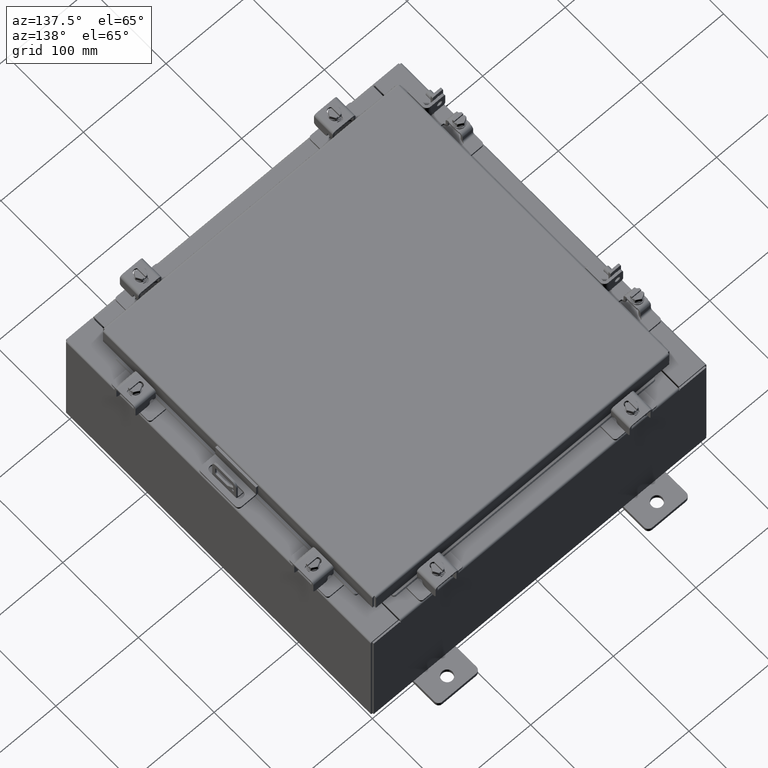
[diagram: clean part render]
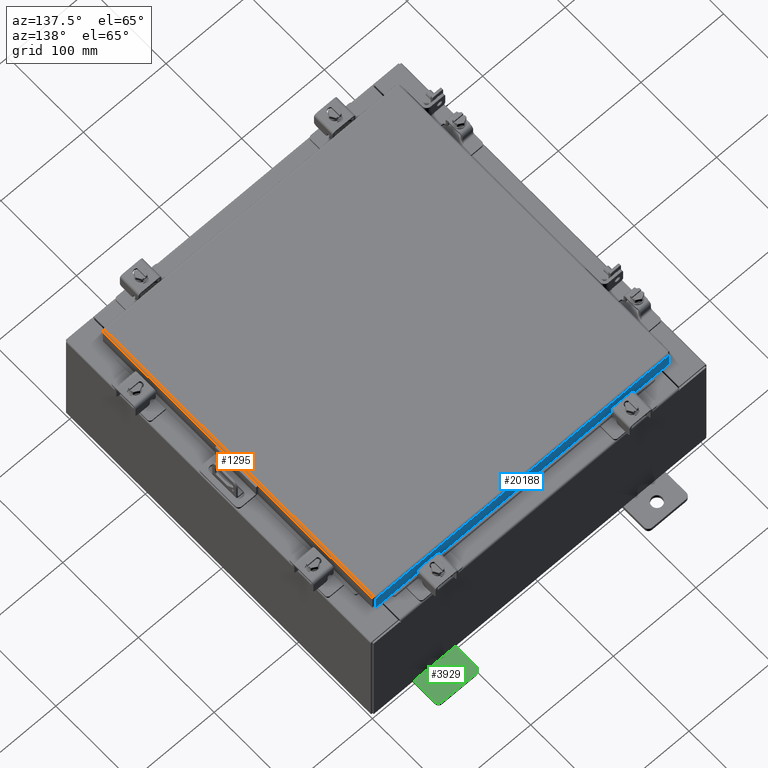
[diagram: same view with three faces highlighted in distinct colors, each labeled with its STEP entity id]
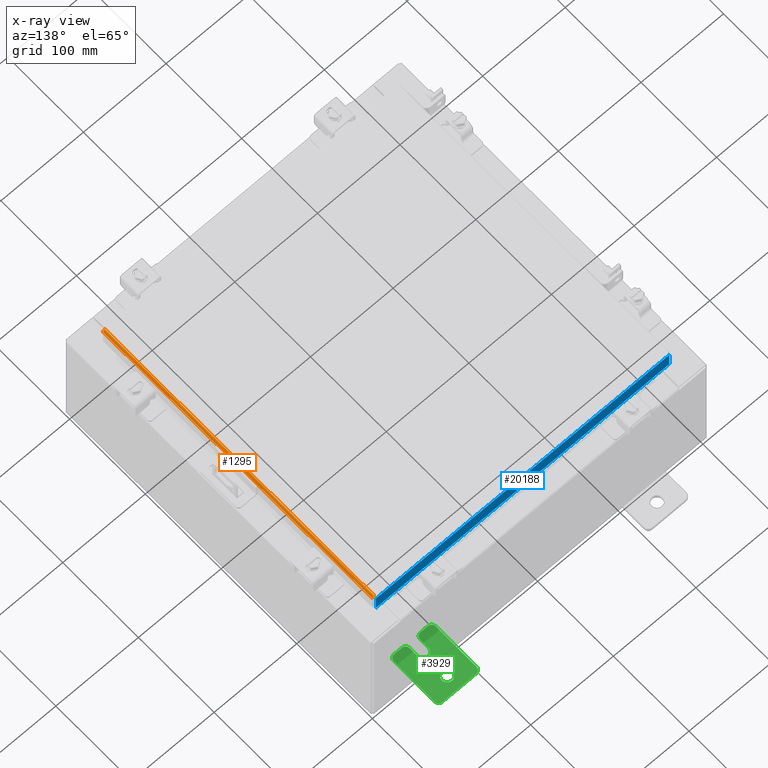
[diagram: x-ray of the same camera — body ghosted, the three highlighted faces saturated]
A machine part, auxiliary view with three faces highlighted in distinct colors.
The next image is the same camera in x-ray (body ghosted, the three faces saturated) — at least one of them is partly hidden behind the body in this view.
Their STEP definitions:

[orange] entity #1295 — the highlighted cylindrical surface (edge-blend (fillet) strip) has radius 2.2276 mm, axis along (-0, -1, -0).
#385 = B_SPLINE_CURVE_WITH_KNOTS ( 'NONE', 3,
 ( #2006, #16840, #18450, #8794, #20054, #10406, #729, #12027, #2365, #13641 ),
 .UNSPECIFIED., .F., .F.,
 ( 4, 2, 2, 2, 4 ),
 ( 0.0000000000000000000, 0.2500000000000000000, 0.5000000000000000000, 0.7500000000000000000, 1.000000000000000000 ),
 .UNSPECIFIED. ) ;
#663 = CARTESIAN_POINT ( 'NONE',  ( 7.044195747341800200, 7.005824110156779300, -0.01756921792167976500 ) ) ;
#729 = CARTESIAN_POINT ( 'NONE',  ( 7.034467384578528400, -7.005919288125422600, -0.01106893374133176100 ) ) ;
#810 = DIRECTION ( 'NONE',  ( 1.000000000000000000, 0.0000000000000000000, 2.725618009642215600E-015 ) ) ;
#892 = CARTESIAN_POINT ( 'NONE',  ( 6.990299999999998600, -7.006300000000000400, -0.08770000000000030500 ) ) ;
#1034 = EDGE_CURVE ( 'NONE', #11741, #14161, #6646, .T. ) ;
#1159 = AXIS2_PLACEMENT_3D ( 'NONE', #892, #12098, #810 ) ;
#1295 = ADVANCED_FACE ( 'NONE', ( #11260 ), #10751, .T. ) ;
#1698 = B_SPLINE_CURVE_WITH_KNOTS ( 'NONE', 3,
 ( #18364, #7122, #19971, #10319, #663, #11962, #2273, #13559, #3900, #15231 ),
 .UNSPECIFIED., .F., .F.,
 ( 4, 2, 2, 2, 4 ),
 ( 0.0000000000000000000, 0.2500000000000000000, 0.5000000000000000000, 0.7500000000000000000, 1.000000000000000000 ),
 .UNSPECIFIED. ) ;
#2006 = CARTESIAN_POINT ( 'NONE',  ( 7.077999999999999400, -7.005157864376269700, -0.08770000000000007000 ) ) ;
#2273 = CARTESIAN_POINT ( 'NONE',  ( 7.066931066258666400, 7.005538576250847500, -0.04353261542147223600 ) ) ;
#2365 = CARTESIAN_POINT ( 'NONE',  ( 7.001779903154991700, -7.006204822031357100, -2.038214714022946300E-016 ) ) ;
#3370 = VERTEX_POINT ( 'NONE', #3934 ) ;
#3796 = DIRECTION ( 'NONE',  ( 0.0000000000000000000, 1.000000000000000000, 0.0000000000000000000 ) ) ;
#3804 = VERTEX_POINT ( 'NONE', #5198 ) ;
#3900 = CARTESIAN_POINT ( 'NONE',  ( 7.077999999999999400, 7.005253042344914900, -0.07622009684500738500 ) ) ;
#3934 = CARTESIAN_POINT ( 'NONE',  ( 6.990299999999998600, -7.006300000000000400, -2.048885995248197400E-016 ) ) ;
#3998 = LINE ( 'NONE', #18285, #16405 ) ;
#5198 = CARTESIAN_POINT ( 'NONE',  ( 6.990299999999998600, 7.006300000000000400, -2.048885995248197400E-016 ) ) ;
#6646 = LINE ( 'NONE', #8671, #18461 ) ;
#6773 = ORIENTED_EDGE ( 'NONE', *, *, #17958, .F. ) ;
#7122 = CARTESIAN_POINT ( 'NONE',  ( 7.001779903154992500, 7.006204822031357100, -2.037881236484656600E-016 ) ) ;
#8190 = CARTESIAN_POINT ( 'NONE',  ( 7.077999999999999400, -7.005157864376269700, -0.08770000000000007000 ) ) ;
#8671 = CARTESIAN_POINT ( 'NONE',  ( 7.077999999999999400, 0.0000000000000000000, -0.08770000000000007000 ) ) ;
#8794 = CARTESIAN_POINT ( 'NONE',  ( 7.066931066258665500, -7.005538576250844900, -0.04353261542147222900 ) ) ;
#9025 = DIRECTION ( 'NONE',  ( 0.0000000000000000000, -1.000000000000000000, 0.0000000000000000000 ) ) ;
#9313 = EDGE_CURVE ( 'NONE', #14161, #3370, #385, .T. ) ;
#9446 = ORIENTED_EDGE ( 'NONE', *, *, #9313, .F. ) ;
#10315 = EDGE_LOOP ( 'NONE', ( #6773, #9446, #16059, #19665 ) ) ;
#10319 = CARTESIAN_POINT ( 'NONE',  ( 7.034467384578526600, 7.005919288125420900, -0.01106893374133176100 ) ) ;
#10406 = CARTESIAN_POINT ( 'NONE',  ( 7.044195747341800200, -7.005824110156780200, -0.01756921792167976500 ) ) ;
#10751 = CYLINDRICAL_SURFACE ( 'NONE', #1159, 0.08770000000000026400 ) ;
#11260 = FACE_OUTER_BOUND ( 'NONE', #10315, .T. ) ;
#11741 = VERTEX_POINT ( 'NONE', #20500 ) ;
#11962 = CARTESIAN_POINT ( 'NONE',  ( 7.060430782078318800, 7.005633754219490000, -0.03380425265820009900 ) ) ;
#12027 = CARTESIAN_POINT ( 'NONE',  ( 7.013255289458310700, -7.006109644062711100, -0.002282596256188923000 ) ) ;
#12098 = DIRECTION ( 'NONE',  ( -0.0000000000000000000, -1.000000000000000000, -0.0000000000000000000 ) ) ;
#13559 = CARTESIAN_POINT ( 'NONE',  ( 7.075717403743811800, 7.005348220313559100, -0.06474471054169121700 ) ) ;
#13641 = CARTESIAN_POINT ( 'NONE',  ( 6.990299999999998600, -7.006300000000000400, -2.048885995248197400E-016 ) ) ;
#14161 = VERTEX_POINT ( 'NONE', #8190 ) ;
#15231 = CARTESIAN_POINT ( 'NONE',  ( 7.077999999999999400, 7.005157864376269700, -0.08770000000000007000 ) ) ;
#16059 = ORIENTED_EDGE ( 'NONE', *, *, #1034, .F. ) ;
#16405 = VECTOR ( 'NONE', #3796, 39.37007874015748100 ) ;
#16840 = CARTESIAN_POINT ( 'NONE',  ( 7.078000000000000300, -7.005253042344914900, -0.07622009684500735700 ) ) ;
#17368 = EDGE_CURVE ( 'NONE', #3804, #11741, #1698, .T. ) ;
#17958 = EDGE_CURVE ( 'NONE', #3370, #3804, #3998, .T. ) ;
#18285 = CARTESIAN_POINT ( 'NONE',  ( 6.990299999999998600, -7.006300000000000400, -2.048885995248197400E-016 ) ) ;
#18364 = CARTESIAN_POINT ( 'NONE',  ( 6.990299999999998600, 7.006300000000000400, -2.048885995248197400E-016 ) ) ;
#18450 = CARTESIAN_POINT ( 'NONE',  ( 7.075717403743810000, -7.005348220313559100, -0.06474471054169121700 ) ) ;
#18461 = VECTOR ( 'NONE', #9025, 39.37007874015748100 ) ;
#19665 = ORIENTED_EDGE ( 'NONE', *, *, #17368, .F. ) ;
#19971 = CARTESIAN_POINT ( 'NONE',  ( 7.013255289458309800, 7.006109644062711100, -0.002282596256188923400 ) ) ;
#20054 = CARTESIAN_POINT ( 'NONE',  ( 7.060430782078321400, -7.005633754219491700, -0.03380425265820009200 ) ) ;
#20500 = CARTESIAN_POINT ( 'NONE',  ( 7.077999999999999400, 7.005157864376269700, -0.08770000000000007000 ) ) ;

[blue] entity #20188 — the highlighted planar face has unit normal (0, -1, -0).
#485 = VERTEX_POINT ( 'NONE', #14532 ) ;
#845 = CARTESIAN_POINT ( 'NONE',  ( -6.239157864376272400, 7.094000000000000300, -0.8500000000000024200 ) ) ;
#878 = VECTOR ( 'NONE', #19590, 39.37007874015748100 ) ;
#1950 = VERTEX_POINT ( 'NONE', #5700 ) ;
#2039 = EDGE_CURVE ( 'NONE', #16246, #13955, #11984, .T. ) ;
#2225 = EDGE_CURVE ( 'NONE', #16246, #1950, #8976, .T. ) ;
#2245 = LINE ( 'NONE', #7115, #2764 ) ;
#2570 = CARTESIAN_POINT ( 'NONE',  ( 6.989157864376268800, 7.094000000000002100, -0.8499999999999996400 ) ) ;
#2707 = ORIENTED_EDGE ( 'NONE', *, *, #18671, .F. ) ;
#2719 = EDGE_CURVE ( 'NONE', #19435, #485, #10969, .T. ) ;
#2764 = VECTOR ( 'NONE', #11952, 39.37007874015748100 ) ;
#2987 = ORIENTED_EDGE ( 'NONE', *, *, #2719, .F. ) ;
#5700 = CARTESIAN_POINT ( 'NONE',  ( -6.989157864376270600, 7.094000000000000300, -0.08770000000000007000 ) ) ;
#6087 = CARTESIAN_POINT ( 'NONE',  ( 6.989157864376268800, 7.094000000000000300, -0.08770000000000007000 ) ) ;
#6332 = AXIS2_PLACEMENT_3D ( 'NONE', #10263, #19987, #10333 ) ;
#7115 = CARTESIAN_POINT ( 'NONE',  ( -6.989157864376270600, 7.094000000000000300, -0.07469999999999978000 ) ) ;
#7565 = VECTOR ( 'NONE', #14339, 39.37007874015748100 ) ;
#7866 = CARTESIAN_POINT ( 'NONE',  ( -7.078000000000003800, 7.094000000000002100, -0.8500000000000014200 ) ) ;
#8557 = LINE ( 'NONE', #16041, #7565 ) ;
#8976 = LINE ( 'NONE', #14821, #878 ) ;
#9024 = EDGE_CURVE ( 'NONE', #13390, #19435, #15326, .T. ) ;
#9958 = ORIENTED_EDGE ( 'NONE', *, *, #2225, .F. ) ;
#10179 = ORIENTED_EDGE ( 'NONE', *, *, #9024, .F. ) ;
#10263 = CARTESIAN_POINT ( 'NONE',  ( -2.508402649932931100E-030, 7.094000000000000300, 2.025795506403866100E-014 ) ) ;
#10333 = DIRECTION ( 'NONE',  ( 0.0000000000000000000, 2.818880942772353800E-015, -1.000000000000000000 ) ) ;
#10969 = LINE ( 'NONE', #11115, #15273 ) ;
#11115 = CARTESIAN_POINT ( 'NONE',  ( -6.239157864376272400, 7.094000000000000300, -0.8500000000000024200 ) ) ;
#11709 = ORIENTED_EDGE ( 'NONE', *, *, #19727, .F. ) ;
#11952 = DIRECTION ( 'NONE',  ( -0.0000000000000000000, 2.818880942772353800E-015, -1.000000000000000000 ) ) ;
#11984 = LINE ( 'NONE', #18177, #15796 ) ;
#13390 = VERTEX_POINT ( 'NONE', #16030 ) ;
#13607 = EDGE_LOOP ( 'NONE', ( #9958, #14426, #11709, #2987, #10179, #2707 ) ) ;
#13955 = VERTEX_POINT ( 'NONE', #2570 ) ;
#14339 = DIRECTION ( 'NONE',  ( 1.000000000000000000, 4.379057701015054300E-047, 1.254380613084043100E-016 ) ) ;
#14426 = ORIENTED_EDGE ( 'NONE', *, *, #2039, .T. ) ;
#14532 = CARTESIAN_POINT ( 'NONE',  ( 6.239157864376261700, 7.094000000000000300, -0.8500000000000024200 ) ) ;
#14821 = CARTESIAN_POINT ( 'NONE',  ( -7.078000000000002100, 7.094000000000000300, -0.08770000000000007000 ) ) ;
#15273 = VECTOR ( 'NONE', #20748, 39.37007874015748100 ) ;
#15326 = LINE ( 'NONE', #7866, #15829 ) ;
#15796 = VECTOR ( 'NONE', #18312, 39.37007874015748100 ) ;
#15829 = VECTOR ( 'NONE', #17514, 39.37007874015748100 ) ;
#16030 = CARTESIAN_POINT ( 'NONE',  ( -6.989157864376270600, 7.094000000000002100, -0.8500000000000014200 ) ) ;
#16041 = CARTESIAN_POINT ( 'NONE',  ( -7.078000000000003800, 7.094000000000002100, -0.8500000000000014200 ) ) ;
#16246 = VERTEX_POINT ( 'NONE', #6087 ) ;
#17514 = DIRECTION ( 'NONE',  ( 1.000000000000000000, 4.379057701015054300E-047, 1.254380613084043100E-016 ) ) ;
#18177 = CARTESIAN_POINT ( 'NONE',  ( 6.989157864376268800, 7.094000000000000300, 2.025795506403866100E-014 ) ) ;
#18312 = DIRECTION ( 'NONE',  ( 0.0000000000000000000, 2.818880942772353800E-015, -1.000000000000000000 ) ) ;
#18317 = PLANE ( 'NONE',  #6332 ) ;
#18671 = EDGE_CURVE ( 'NONE', #1950, #13390, #2245, .T. ) ;
#19435 = VERTEX_POINT ( 'NONE', #845 ) ;
#19590 = DIRECTION ( 'NONE',  ( -1.000000000000000000, -3.535949605205711300E-031, -9.638176865770746200E-046 ) ) ;
#19632 = FACE_OUTER_BOUND ( 'NONE', #13607, .T. ) ;
#19727 = EDGE_CURVE ( 'NONE', #485, #13955, #8557, .T. ) ;
#19987 = DIRECTION ( 'NONE',  ( 3.535949605205710500E-031, -1.000000000000000000, -2.818880942772353800E-015 ) ) ;
#20188 = ADVANCED_FACE ( 'NONE', ( #19632 ), #18317, .F. ) ;
#20748 = DIRECTION ( 'NONE',  ( 1.000000000000000000, -0.0000000000000000000, -0.0000000000000000000 ) ) ;

[green] entity #3929 — the highlighted planar face has unit normal (0, 0, -1).
#59 = LINE ( 'NONE', #10225, #11908 ) ;
#399 = CARTESIAN_POINT ( 'NONE',  ( -0.1879999999999997800, -1.060000000000001600, 0.8099999999999978300 ) ) ;
#424 = CARTESIAN_POINT ( 'NONE',  ( -0.1879999999999997800, 1.059999999999993400, -1.000000000000010000 ) ) ;
#470 = DIRECTION ( 'NONE',  ( 0.0000000000000000000, 0.0000000000000000000, -1.000000000000000000 ) ) ;
#514 = PLANE ( 'NONE',  #9574 ) ;
#627 = CARTESIAN_POINT ( 'NONE',  ( -0.1879999999999997800, 1.249999999999994700, -0.8100000000000092700 ) ) ;
#695 = CARTESIAN_POINT ( 'NONE',  ( -0.1880000000000001900, -0.6249999999999992200, 0.2500000000000005000 ) ) ;
#811 = LINE ( 'NONE', #4370, #18001 ) ;
#1010 = CARTESIAN_POINT ( 'NONE',  ( -0.1879999999999997800, 1.249999999999997300, 0.8099999999999935000 ) ) ;
#1228 = ORIENTED_EDGE ( 'NONE', *, *, #5026, .F. ) ;
#1521 = ORIENTED_EDGE ( 'NONE', *, *, #15833, .F. ) ;
#1647 = AXIS2_PLACEMENT_3D ( 'NONE', #9293, #20552, #10920 ) ;
#1772 = CARTESIAN_POINT ( 'NONE',  ( -0.1879999999999997800, 1.059999999999996500, 0.9999999999999953400 ) ) ;
#1886 = CARTESIAN_POINT ( 'NONE',  ( -0.1880000000000001900, -0.6249999999999992200, -0.2499999999999998600 ) ) ;
#1998 = DIRECTION ( 'NONE',  ( 0.0000000000000000000, 7.189073667537492800E-016, -1.000000000000000000 ) ) ;
#2137 = DIRECTION ( 'NONE',  ( -0.0000000000000000000, 0.0000000000000000000, -1.000000000000000000 ) ) ;
#2321 = FACE_BOUND ( 'NONE', #4929, .T. ) ;
#2369 = EDGE_CURVE ( 'NONE', #4146, #13424, #16056, .T. ) ;
#3126 = VERTEX_POINT ( 'NONE', #1772 ) ;
#3413 = LINE ( 'NONE', #5487, #11489 ) ;
#3439 = EDGE_CURVE ( 'NONE', #4146, #16031, #18020, .T. ) ;
#3632 = CIRCLE ( 'NONE', #17029, 0.1900000000000011100 ) ;
#3648 = ORIENTED_EDGE ( 'NONE', *, *, #15934, .F. ) ;
#3868 = EDGE_CURVE ( 'NONE', #13751, #6564, #7692, .T. ) ;
#3887 = DIRECTION ( 'NONE',  ( -1.000000000000000000, -0.0000000000000000000, 0.0000000000000000000 ) ) ;
#3929 = ADVANCED_FACE ( 'NONE', ( #2321, #6667 ), #514, .F. ) ;
#4010 = EDGE_CURVE ( 'NONE', #16599, #6882, #10404, .T. ) ;
#4034 = ORIENTED_EDGE ( 'NONE', *, *, #10786, .T. ) ;
#4045 = ORIENTED_EDGE ( 'NONE', *, *, #4010, .T. ) ;
#4146 = VERTEX_POINT ( 'NONE', #7470 ) ;
#4370 = CARTESIAN_POINT ( 'NONE',  ( -0.1879999999999997800, -1.250000000000005600, -1.000000000000006200 ) ) ;
#4449 = EDGE_CURVE ( 'NONE', #18908, #18687, #9384, .T. ) ;
#4737 = EDGE_CURVE ( 'NONE', #15835, #6882, #811, .T. ) ;
#4749 = DIRECTION ( 'NONE',  ( 1.000000000000000000, -0.0000000000000000000, -5.163192708025532000E-017 ) ) ;
#4766 = EDGE_CURVE ( 'NONE', #3126, #5855, #16997, .T. ) ;
#4866 = CIRCLE ( 'NONE', #15946, 0.2499999999999999200 ) ;
#4927 = LINE ( 'NONE', #16859, #13468 ) ;
#4929 = EDGE_LOOP ( 'NONE', ( #10731, #15758 ) ) ;
#5013 = DIRECTION ( 'NONE',  ( -1.000000000000000000, -0.0000000000000000000, 0.0000000000000000000 ) ) ;
#5026 = EDGE_CURVE ( 'NONE', #16031, #13585, #4866, .T. ) ;
#5124 = EDGE_CURVE ( 'NONE', #15835, #14949, #3632, .T. ) ;
#5149 = ORIENTED_EDGE ( 'NONE', *, *, #10293, .F. ) ;
#5253 = CARTESIAN_POINT ( 'NONE',  ( -0.1880000000000010000, 0.6249999999999992200, -7.703811342100550500E-020 ) ) ;
#5487 = CARTESIAN_POINT ( 'NONE',  ( -0.1879999999999997800, -1.250000000000002200, 0.9999999999999992200 ) ) ;
#5855 = VERTEX_POINT ( 'NONE', #1010 ) ;
#5954 = AXIS2_PLACEMENT_3D ( 'NONE', #19798, #10127, #470 ) ;
#6526 = ORIENTED_EDGE ( 'NONE', *, *, #13762, .F. ) ;
#6564 = VERTEX_POINT ( 'NONE', #17466 ) ;
#6626 = ORIENTED_EDGE ( 'NONE', *, *, #14650, .F. ) ;
#6667 = FACE_OUTER_BOUND ( 'NONE', #11457, .T. ) ;
#6735 = CARTESIAN_POINT ( 'NONE',  ( -0.1880000000000001900, -0.6249999999999992200, 6.829619984160658000E-017 ) ) ;
#6859 = DIRECTION ( 'NONE',  ( -1.000000000000000000, -0.0000000000000000000, 0.0000000000000000000 ) ) ;
#6882 = VERTEX_POINT ( 'NONE', #424 ) ;
#6908 = DIRECTION ( 'NONE',  ( 0.0000000000000000000, 0.0000000000000000000, -1.000000000000000000 ) ) ;
#7449 = DIRECTION ( 'NONE',  ( 6.556435184794182400E-016, 1.000000000000000000, 0.0000000000000000000 ) ) ;
#7470 = CARTESIAN_POINT ( 'NONE',  ( -0.1880000000000004700, -1.060000000000002100, 0.2500000000000005000 ) ) ;
#7692 = CIRCLE ( 'NONE', #14741, 0.2499999999999999200 ) ;
#7760 = DIRECTION ( 'NONE',  ( 0.0000000000000000000, -1.639108796198553600E-015, -1.000000000000000000 ) ) ;
#7870 = AXIS2_PLACEMENT_3D ( 'NONE', #13549, #3887, #15216 ) ;
#8341 = DIRECTION ( 'NONE',  ( -6.829619984160660000E-016, -1.000000000000000000, 0.0000000000000000000 ) ) ;
#8355 = CARTESIAN_POINT ( 'NONE',  ( -0.1879999999999997800, -1.250000000000005300, -0.8100000000000047200 ) ) ;
#8783 = CARTESIAN_POINT ( 'NONE',  ( -0.1880000000000004700, -1.060000000000003400, -0.2499999999999994400 ) ) ;
#8792 = ORIENTED_EDGE ( 'NONE', *, *, #5124, .T. ) ;
#8841 = VERTEX_POINT ( 'NONE', #9098 ) ;
#9098 = CARTESIAN_POINT ( 'NONE',  ( -0.1879999999999997800, -1.060000000000001200, 0.9999999999999988900 ) ) ;
#9197 = LINE ( 'NONE', #17460, #9701 ) ;
#9293 = CARTESIAN_POINT ( 'NONE',  ( -0.1879999999999997800, 1.059999999999996300, 0.8099999999999938400 ) ) ;
#9384 = CIRCLE ( 'NONE', #20119, 0.1900000000000011100 ) ;
#9574 = AXIS2_PLACEMENT_3D ( 'NONE', #13281, #11795, #2137 ) ;
#9701 = VECTOR ( 'NONE', #7760, 39.37007874015748100 ) ;
#10019 = DIRECTION ( 'NONE',  ( -6.556435184794182400E-016, -1.000000000000000000, -1.639108796198545600E-016 ) ) ;
#10117 = AXIS2_PLACEMENT_3D ( 'NONE', #399, #11683, #1998 ) ;
#10127 = DIRECTION ( 'NONE',  ( -1.000000000000000000, -0.0000000000000000000, 0.0000000000000000000 ) ) ;
#10142 = LINE ( 'NONE', #13214, #13418 ) ;
#10225 = CARTESIAN_POINT ( 'NONE',  ( -0.1879999999999997800, 1.249999999999994200, -1.000000000000010400 ) ) ;
#10293 = EDGE_CURVE ( 'NONE', #3126, #8841, #4927, .T. ) ;
#10404 = CIRCLE ( 'NONE', #7870, 0.1900000000000011100 ) ;
#10731 = ORIENTED_EDGE ( 'NONE', *, *, #11868, .T. ) ;
#10786 = EDGE_CURVE ( 'NONE', #16375, #8841, #14512, .T. ) ;
#10920 = DIRECTION ( 'NONE',  ( 0.0000000000000000000, 0.0000000000000000000, -1.000000000000000000 ) ) ;
#11457 = EDGE_LOOP ( 'NONE', ( #6526, #4034, #5149, #17444, #3648, #4045, #12988, #8792, #6626, #15029, #1521, #1228, #18982, #17477 ) ) ;
#11489 = VECTOR ( 'NONE', #18367, 39.37007874015748100 ) ;
#11683 = DIRECTION ( 'NONE',  ( -1.000000000000000000, -0.0000000000000000000, 0.0000000000000000000 ) ) ;
#11795 = DIRECTION ( 'NONE',  ( 1.000000000000000000, 0.0000000000000000000, -0.0000000000000000000 ) ) ;
#11842 = DIRECTION ( 'NONE',  ( 0.0000000000000000000, 1.639108796198553600E-015, 1.000000000000000000 ) ) ;
#11868 = EDGE_CURVE ( 'NONE', #6564, #13751, #18218, .T. ) ;
#11908 = VECTOR ( 'NONE', #11842, 39.37007874015748100 ) ;
#12988 = ORIENTED_EDGE ( 'NONE', *, *, #4737, .F. ) ;
#13210 = VECTOR ( 'NONE', #7449, 39.37007874015748100 ) ;
#13214 = CARTESIAN_POINT ( 'NONE',  ( -0.1880000000000001900, -0.6249999999999992200, -0.2499999999999993900 ) ) ;
#13281 = CARTESIAN_POINT ( 'NONE',  ( -0.1879999999999997800, 0.0000000000000000000, 0.0000000000000000000 ) ) ;
#13418 = VECTOR ( 'NONE', #10019, 39.37007874015748100 ) ;
#13424 = VERTEX_POINT ( 'NONE', #14473 ) ;
#13468 = VECTOR ( 'NONE', #20072, 39.37007874015748100 ) ;
#13549 = CARTESIAN_POINT ( 'NONE',  ( -0.1879999999999997800, 1.059999999999993600, -0.8100000000000089400 ) ) ;
#13585 = VERTEX_POINT ( 'NONE', #1886 ) ;
#13751 = VERTEX_POINT ( 'NONE', #19901 ) ;
#13762 = EDGE_CURVE ( 'NONE', #16375, #13424, #3413, .T. ) ;
#14418 = CARTESIAN_POINT ( 'NONE',  ( -0.1880000000000010000, 0.6249999999999992200, -7.703811342100550500E-020 ) ) ;
#14473 = CARTESIAN_POINT ( 'NONE',  ( -0.1879999999999997800, -1.250000000000003100, 0.4400000000000020000 ) ) ;
#14512 = CIRCLE ( 'NONE', #10117, 0.1900000000000011100 ) ;
#14650 = EDGE_CURVE ( 'NONE', #18908, #14949, #9197, .T. ) ;
#14706 = CARTESIAN_POINT ( 'NONE',  ( -0.1879999999999997800, -1.060000000000003400, -0.4400000000000005000 ) ) ;
#14741 = AXIS2_PLACEMENT_3D ( 'NONE', #5253, #16558, #6908 ) ;
#14949 = VERTEX_POINT ( 'NONE', #8355 ) ;
#15029 = ORIENTED_EDGE ( 'NONE', *, *, #4449, .T. ) ;
#15216 = DIRECTION ( 'NONE',  ( 0.0000000000000000000, 0.0000000000000000000, -1.000000000000000000 ) ) ;
#15473 = CARTESIAN_POINT ( 'NONE',  ( -0.1880000000000005800, -1.250000000000003800, 0.2500000000000005000 ) ) ;
#15661 = DIRECTION ( 'NONE',  ( 0.0000000000000000000, 1.000000000000000000, -1.639108796198558100E-015 ) ) ;
#15758 = ORIENTED_EDGE ( 'NONE', *, *, #3868, .T. ) ;
#15833 = EDGE_CURVE ( 'NONE', #13585, #18687, #10142, .T. ) ;
#15835 = VERTEX_POINT ( 'NONE', #19687 ) ;
#15934 = EDGE_CURVE ( 'NONE', #16599, #5855, #59, .T. ) ;
#15946 = AXIS2_PLACEMENT_3D ( 'NONE', #6735, #17982, #8341 ) ;
#16031 = VERTEX_POINT ( 'NONE', #695 ) ;
#16052 = DIRECTION ( 'NONE',  ( 0.0000000000000000000, 0.0000000000000000000, -1.000000000000000000 ) ) ;
#16056 = CIRCLE ( 'NONE', #5954, 0.1900000000000011400 ) ;
#16325 = DIRECTION ( 'NONE',  ( 0.0000000000000000000, 0.0000000000000000000, -1.000000000000000000 ) ) ;
#16375 = VERTEX_POINT ( 'NONE', #18005 ) ;
#16509 = CARTESIAN_POINT ( 'NONE',  ( -0.1879999999999997800, -1.060000000000004100, -0.8100000000000050500 ) ) ;
#16558 = DIRECTION ( 'NONE',  ( 1.000000000000000000, -0.0000000000000000000, -5.163192708025532000E-017 ) ) ;
#16599 = VERTEX_POINT ( 'NONE', #627 ) ;
#16859 = CARTESIAN_POINT ( 'NONE',  ( -0.1879999999999997800, 1.249999999999997600, 0.9999999999999951200 ) ) ;
#16997 = CIRCLE ( 'NONE', #1647, 0.1900000000000011100 ) ;
#17029 = AXIS2_PLACEMENT_3D ( 'NONE', #16509, #6859, #18120 ) ;
#17444 = ORIENTED_EDGE ( 'NONE', *, *, #4766, .T. ) ;
#17460 = CARTESIAN_POINT ( 'NONE',  ( -0.1879999999999997800, -1.250000000000002200, 0.9999999999999992200 ) ) ;
#17466 = CARTESIAN_POINT ( 'NONE',  ( -0.1880000000000010000, 0.6249999999999992200, -0.2499999999999999200 ) ) ;
#17477 = ORIENTED_EDGE ( 'NONE', *, *, #2369, .T. ) ;
#17982 = DIRECTION ( 'NONE',  ( -1.000000000000000000, 6.523827964459549700E-016, 5.163192708025532000E-017 ) ) ;
#18001 = VECTOR ( 'NONE', #15661, 39.37007874015748100 ) ;
#18005 = CARTESIAN_POINT ( 'NONE',  ( -0.1879999999999997800, -1.250000000000002400, 0.8099999999999980500 ) ) ;
#18020 = LINE ( 'NONE', #15473, #13210 ) ;
#18120 = DIRECTION ( 'NONE',  ( 0.0000000000000000000, 0.0000000000000000000, -1.000000000000000000 ) ) ;
#18218 = CIRCLE ( 'NONE', #18551, 0.2499999999999999200 ) ;
#18367 = DIRECTION ( 'NONE',  ( 0.0000000000000000000, -1.639108796198553600E-015, -1.000000000000000000 ) ) ;
#18551 = AXIS2_PLACEMENT_3D ( 'NONE', #14418, #4749, #16052 ) ;
#18687 = VERTEX_POINT ( 'NONE', #8783 ) ;
#18908 = VERTEX_POINT ( 'NONE', #19008 ) ;
#18982 = ORIENTED_EDGE ( 'NONE', *, *, #3439, .F. ) ;
#19008 = CARTESIAN_POINT ( 'NONE',  ( -0.1879999999999997800, -1.250000000000004700, -0.4400000000000002200 ) ) ;
#19687 = CARTESIAN_POINT ( 'NONE',  ( -0.1879999999999997800, -1.060000000000004500, -1.000000000000006400 ) ) ;
#19798 = CARTESIAN_POINT ( 'NONE',  ( -0.1879999999999997800, -1.060000000000002100, 0.4400000000000016700 ) ) ;
#19901 = CARTESIAN_POINT ( 'NONE',  ( -0.1880000000000010000, 0.6249999999999992200, 0.2499999999999999200 ) ) ;
#20072 = DIRECTION ( 'NONE',  ( 0.0000000000000000000, -1.000000000000000000, 1.639108796198558100E-015 ) ) ;
#20119 = AXIS2_PLACEMENT_3D ( 'NONE', #14706, #5013, #16325 ) ;
#20552 = DIRECTION ( 'NONE',  ( -1.000000000000000000, -0.0000000000000000000, 0.0000000000000000000 ) ) ;